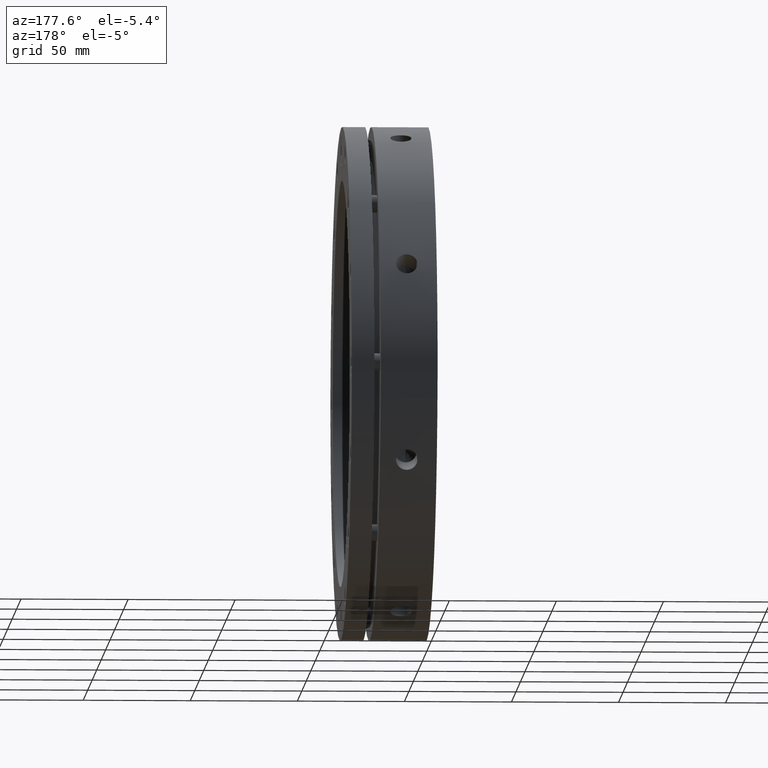
[diagram: clean part render]
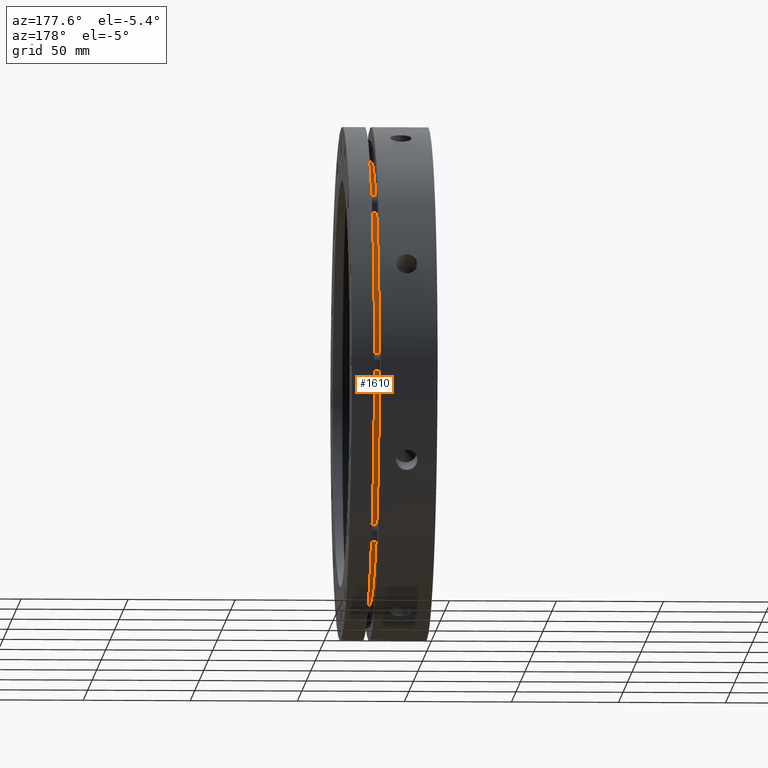
[diagram: same view with one face highlighted and labeled with its STEP entity id]
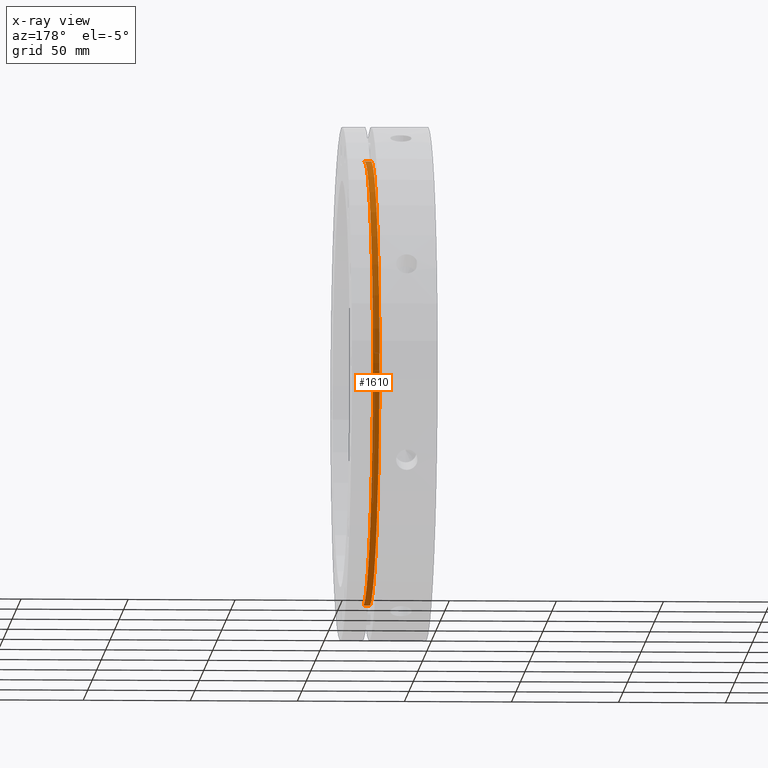
[diagram: x-ray of the same camera — body ghosted, the highlighted face saturated]
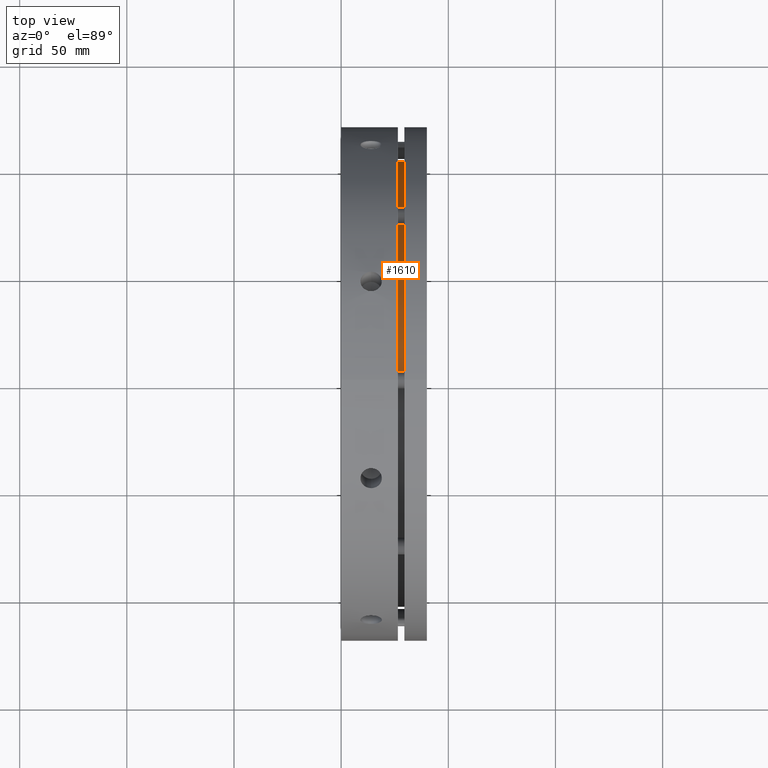
[diagram: same view with one face highlighted and labeled with its STEP entity id]
A machine part, auxiliary view. The second image highlights one B-rep face of the part: STEP entity #1610.
The next image is the same camera in x-ray: the body ghosted, the highlighted face saturated — about 2% of this face is hidden behind the body in this view.
A second angle (top view) of the same face is appended — the face is thin or edge-on in the first view.
In plain terms, the highlighted cylindrical surface (partial cylindrical patch) has radius 104 mm, axis along (-1, 0, 0).
Its self-contained STEP definition (entity closure, byte-faithful):
#91 = EDGE_CURVE ( 'NONE', #2323, #2327, #3042, .T. ) ;
#95 = EDGE_CURVE ( 'NONE', #2315, #2326, #3048, .T. ) ;
#96 = EDGE_CURVE ( 'NONE', #2326, #2327, #3049, .T. ) ;
#97 = EDGE_CURVE ( 'NONE', #2323, #2315, #3052, .T. ) ;
#313 = EDGE_LOOP ( 'NONE', ( #531, #532, #533, #534 ) ) ;
#531 = ORIENTED_EDGE ( 'NONE', *, *, #97, .T. ) ;
#532 = ORIENTED_EDGE ( 'NONE', *, *, #95, .T. ) ;
#533 = ORIENTED_EDGE ( 'NONE', *, *, #96, .T. ) ;
#534 = ORIENTED_EDGE ( 'NONE', *, *, #91, .F. ) ;
#806 = CARTESIAN_POINT ( 'NONE',  ( 27.99999999999997200, 0.0000000000000000000, 104.0000000000000100 ) ) ;
#807 = DIRECTION ( 'NONE',  ( -1.000000000000000000, 0.0000000000000000000, 0.0000000000000000000 ) ) ;
#810 = DIRECTION ( 'NONE',  ( -1.000000000000000000, 0.0000000000000000000, 0.0000000000000000000 ) ) ;
#814 = CARTESIAN_POINT ( 'NONE',  ( 27.99999999999997200, 1.273632671113247400E-014, -104.0000000000000100 ) ) ;
#820 = CARTESIAN_POINT ( 'NONE',  ( 26.49999999999996800, 0.0000000000000000000, 0.0000000000000000000 ) ) ;
#821 = DIRECTION ( 'NONE',  ( 1.000000000000000000, -0.0000000000000000000, -0.0000000000000000000 ) ) ;
#822 = DIRECTION ( 'NONE',  ( 0.0000000000000000000, 0.0000000000000000000, 1.000000000000000000 ) ) ;
#825 = CARTESIAN_POINT ( 'NONE',  ( 29.49999999999997500, 0.0000000000000000000, 0.0000000000000000000 ) ) ;
#826 = DIRECTION ( 'NONE',  ( -1.000000000000000000, 0.0000000000000000000, 0.0000000000000000000 ) ) ;
#827 = DIRECTION ( 'NONE',  ( 0.0000000000000000000, 0.0000000000000000000, 1.000000000000000000 ) ) ;
#1610 = ADVANCED_FACE ( 'NONE', ( #3743 ), #3749, .T. ) ;
#2315 = VERTEX_POINT ( 'NONE', #4935 ) ;
#2323 = VERTEX_POINT ( 'NONE', #4943 ) ;
#2326 = VERTEX_POINT ( 'NONE', #4946 ) ;
#2327 = VERTEX_POINT ( 'NONE', #4947 ) ;
#3042 = LINE ( 'NONE', #806, #3045 ) ;
#3045 = VECTOR ( 'NONE', #807, 1000.000000000000000 ) ;
#3048 = LINE ( 'NONE', #814, #3051 ) ;
#3049 = CIRCLE ( 'NONE', #3356, 104.0000000000000100 ) ;
#3051 = VECTOR ( 'NONE', #810, 1000.000000000000000 ) ;
#3052 = CIRCLE ( 'NONE', #3355, 104.0000000000000100 ) ;
#3274 = AXIS2_PLACEMENT_3D ( 'NONE', #4416, #4414, #4412 ) ;
#3355 = AXIS2_PLACEMENT_3D ( 'NONE', #825, #826, #827 ) ;
#3356 = AXIS2_PLACEMENT_3D ( 'NONE', #820, #821, #822 ) ;
#3743 = FACE_OUTER_BOUND ( 'NONE', #313, .T. ) ;
#3749 = CYLINDRICAL_SURFACE ( 'NONE', #3274, 104.0000000000000100 ) ;
#4412 = DIRECTION ( 'NONE',  ( 0.0000000000000000000, 0.0000000000000000000, 1.000000000000000000 ) ) ;
#4414 = DIRECTION ( 'NONE',  ( -1.000000000000000000, 0.0000000000000000000, 0.0000000000000000000 ) ) ;
#4416 = CARTESIAN_POINT ( 'NONE',  ( 27.99999999999997200, 0.0000000000000000000, 0.0000000000000000000 ) ) ;
#4935 = CARTESIAN_POINT ( 'NONE',  ( 29.49999999999997500, 1.273632671113247400E-014, -104.0000000000000100 ) ) ;
#4943 = CARTESIAN_POINT ( 'NONE',  ( 29.49999999999997500, 0.0000000000000000000, 104.0000000000000100 ) ) ;
#4946 = CARTESIAN_POINT ( 'NONE',  ( 26.49999999999996800, 1.273632671113247400E-014, -104.0000000000000100 ) ) ;
#4947 = CARTESIAN_POINT ( 'NONE',  ( 26.49999999999996800, 0.0000000000000000000, 104.0000000000000100 ) ) ;